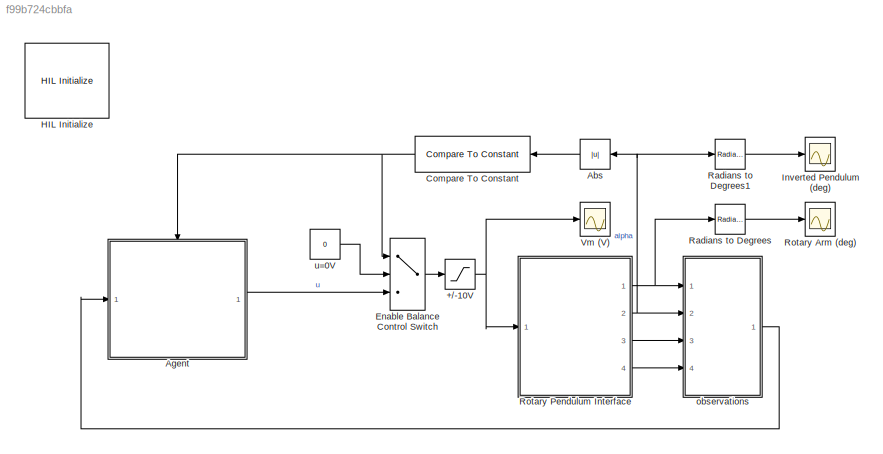
MODEL slx_f99b724cbbfa
KIND model
CONFIG AbsTol = auto
CONFIG EnableMultiTasking = on
CONFIG FixedStep = 0.002
CONFIG MaxStep = auto
CONFIG MinStep = auto
CONFIG RelTol = 1e-3
CONFIG SampleTimeConstraint = Unconstrained
CONFIG SolverName = ode4
CONFIG StartTime = 0.0
CONFIG StopTime = inf
BLOCK [Saturate] +//-10V
  LowerLimit = -10
  UpperLimit = 10
BLOCK [Abs] Abs
  SaturateOnIntegerOverflow = off
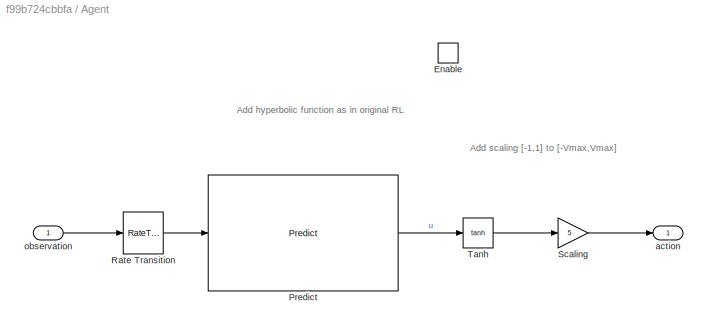
BLOCK [SubSystem] Agent
  Ports = [1, 1, 1]
  RequestExecContextInheritance = off
BLOCK [EnablePort] Agent/Enable
  Ports = []
BLOCK [Reference] Agent/Predict  REF=deeplib/Predict
  Ports = [1, 1]
  SourceBlock = deeplib/Predict
  SourceProductBaseCode = NN
  SourceType = Predict
BLOCK [RateTransition] Agent/Rate Transition
BLOCK [Gain] Agent/Scaling
  Gain = 5
BLOCK [Trigonometry] Agent/Tanh
  Operator = tanh
  Ports = [1, 1]
BLOCK [Outport] Agent/action
  InitialOutput = [0]
BLOCK [Inport] Agent/observation
BLOCK [Reference] Compare To Constant  REF=simulink/Logic and Bit
Operations/Compare
To Constant
  Ports = [1, 1]
  SourceBlock = simulink/Logic and Bit\nOperations/Compare\nTo Constant
  SourceProductBaseCode = SL
  SourceType = Compare To Constant
BLOCK [MultiPortSwitch] Enable Balance Control Switch
  DataPortOrder = Zero-based contiguous
  InputSameDT = off
  Inputs = 2
  Ports = [3, 1]
  SaturateOnIntegerOverflow = off
  zeroidx = on
BLOCK [Reference] HIL Initialize  REF=quarc_library/Data Acquisition/Generic/Configuration/HIL Initialize
  AttributesFormatString = %<object_name> (%<board_type>-%<board_number>)
  Ports = []
  SourceBlock = quarc_library/Data Acquisition/Generic/Configuration/HIL Initialize
  SourceProductName = QUARC Targets
  SourceType = HIL Initialize
  UserDataPersistent = on
BLOCK [Scope] Inverted Pendulum (deg)
  Floating = off
  NumInputPorts = 1
  Ports = [1]
  ScopeSpecificationString = Simulink.scopes.TimeScopeBlockCfg('CurrentConfiguration', extmgr.ConfigurationSet(extmgr.Configuration('Core','General UI',true),extmgr.Configuration('Core','Source UI',true),extmgr.Configuration('Sources','WiredSimulink',true,'DataLoggingVariableName','ScopeData1'),extmgr.Configuration('Visuals','Time Domain',true,'SerializedDisplays',{struct('MinYLimReal','-20','MaxYLimReal','20','YLabelReal',''...<+1456ch>
BLOCK [Reference] Radians to Degrees  REF=simulink_extras/Transformations/Radians
to Degrees
  Ports = [1, 1]
  SourceBlock = simulink_extras/Transformations/Radians\nto Degrees
  SourceProductBaseCode = SL
  SourceType = RadiansToDegrees
BLOCK [Reference] Radians to Degrees1  REF=simulink_extras/Transformations/Radians
to Degrees
  Ports = [1, 1]
  SourceBlock = simulink_extras/Transformations/Radians\nto Degrees
  SourceProductBaseCode = SL
  SourceType = RadiansToDegrees
BLOCK [Scope] Rotary Arm (deg)
  Floating = off
  NumInputPorts = 1
  Ports = [1]
  ScopeSpecificationString = Simulink.scopes.TimeScopeBlockCfg('CurrentConfiguration', extmgr.ConfigurationSet(extmgr.Configuration('Core','General UI',true),extmgr.Configuration('Core','Source UI',true),extmgr.Configuration('Sources','WiredSimulink',true,'DataLoggingVariableName','ScopeData2'),extmgr.Configuration('Visuals','Time Domain',true,'SerializedDisplays',{struct('MinYLimReal','-30','MaxYLimReal','30','YLabelReal',''...<+1431ch>
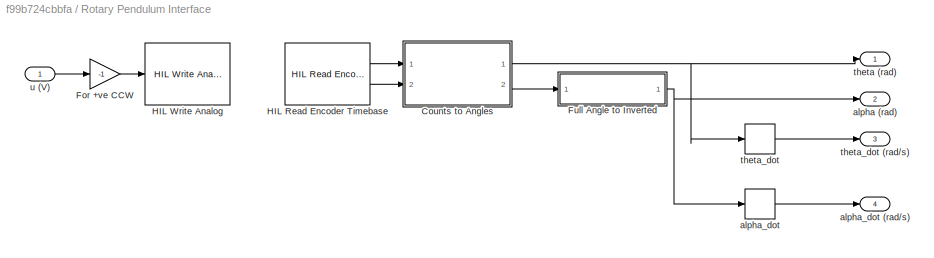
BLOCK [SubSystem] Rotary Pendulum Interface
  Ports = [1, 4]
  RequestExecContextInheritance = off
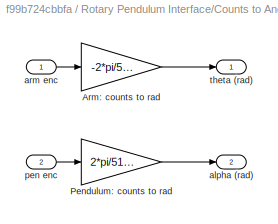
BLOCK [SubSystem] Rotary Pendulum Interface/Counts to Angles
  Ports = [2, 2]
  RequestExecContextInheritance = off
BLOCK [Gain] Rotary Pendulum Interface/Counts to Angles/Arm: counts to rad
  Gain = -2*pi/512/4
BLOCK [Gain] Rotary Pendulum Interface/Counts to Angles/Pendulum: counts to rad
  Gain = 2*pi/512/4
BLOCK [Outport] Rotary Pendulum Interface/Counts to Angles/alpha (rad)
  Port = 2
  VectorParamsAs1DForOutWhenUnconnected = off
BLOCK [Inport] Rotary Pendulum Interface/Counts to Angles/arm enc
BLOCK [Inport] Rotary Pendulum Interface/Counts to Angles/pen enc
  Port = 2
BLOCK [Outport] Rotary Pendulum Interface/Counts to Angles/theta (rad)
  VectorParamsAs1DForOutWhenUnconnected = off
BLOCK [Gain] Rotary Pendulum Interface/For +ve CCW
  Gain = -1
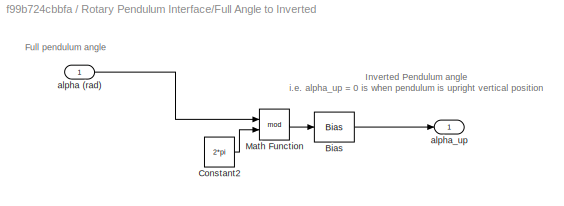
BLOCK [SubSystem] Rotary Pendulum Interface/Full Angle to Inverted
  Ports = [1, 1]
  RequestExecContextInheritance = off
BLOCK [Bias] Rotary Pendulum Interface/Full Angle to Inverted/Bias
  Bias = -pi
  SaturateOnIntegerOverflow = off
BLOCK [Constant] Rotary Pendulum Interface/Full Angle to Inverted/Constant2
  Value = 2*pi
BLOCK [Math] Rotary Pendulum Interface/Full Angle to Inverted/Math Function
  Operator = mod
  Ports = [2, 1]
  SignedPower = on
BLOCK [Inport] Rotary Pendulum Interface/Full Angle to Inverted/alpha (rad)
BLOCK [Outport] Rotary Pendulum Interface/Full Angle to Inverted/alpha_up
  VectorParamsAs1DForOutWhenUnconnected = off
BLOCK [Reference] Rotary Pendulum Interface/HIL Read Encoder Timebase  REF=quarc_library/Data Acquisition/Generic/Timebases/HIL Read Encoder
Timebase
  AttributesFormatString = (%<object_name>)
  Ports = [0, 2]
  SourceBlock = quarc_library/Data Acquisition/Generic/Timebases/HIL Read Encoder\nTimebase
  SourceProductName = QUARC Targets
  SourceType = HIL Read Encoder Timebase
  UserDataPersistent = on
BLOCK [Reference] Rotary Pendulum Interface/HIL Write Analog  REF=quarc_library/Data Acquisition/Generic/Immediate I//O/HIL Write Analog
  AttributesFormatString = (%<object_name>)
  Ports = [1]
  SourceBlock = quarc_library/Data Acquisition/Generic/Immediate I//O/HIL Write Analog
  SourceProductName = QUARC Targets
  SourceType = HIL Write Analog
  UserDataPersistent = on
BLOCK [Outport] Rotary Pendulum Interface/alpha (rad)
  Port = 2
  VectorParamsAs1DForOutWhenUnconnected = off
BLOCK [Derivative] Rotary Pendulum Interface/alpha_dot
BLOCK [Outport] Rotary Pendulum Interface/alpha_dot (rad//s)
  Port = 4
  VectorParamsAs1DForOutWhenUnconnected = off
BLOCK [Outport] Rotary Pendulum Interface/theta (rad)
  VectorParamsAs1DForOutWhenUnconnected = off
BLOCK [Derivative] Rotary Pendulum Interface/theta_dot
BLOCK [Outport] Rotary Pendulum Interface/theta_dot (rad//s)
  Port = 3
  VectorParamsAs1DForOutWhenUnconnected = off
BLOCK [Inport] Rotary Pendulum Interface/u (V)
BLOCK [Scope] Vm (V)
  Floating = off
  NumInputPorts = 1
  Ports = [1]
  ScopeSpecificationString = Simulink.scopes.TimeScopeBlockCfg('CurrentConfiguration', extmgr.ConfigurationSet(extmgr.Configuration('Core','General UI',true),extmgr.Configuration('Core','Source UI',true),extmgr.Configuration('Sources','WiredSimulink',true),extmgr.Configuration('Visuals','Time Domain',true,'SerializedDisplays',{struct('MinYLimReal','-8','MaxYLimReal','8','YLabelReal','','MinYLimMag','0.00000','MaxYLimMag','3.2...<+1401ch>
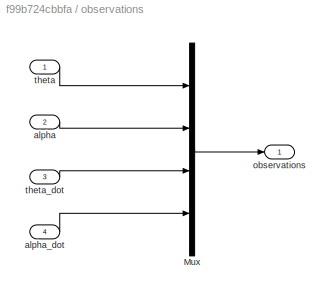
BLOCK [SubSystem] observations
  Ports = [4, 1]
  RequestExecContextInheritance = off
  VariantControl = sincos
BLOCK [Mux] observations/Mux
  DisplayOption = bar
  Ports = [4, 1]
BLOCK [Inport] observations/alpha
  Port = 2
BLOCK [Inport] observations/alpha_dot
  Port = 4
BLOCK [Outport] observations/observations
  VectorParamsAs1DForOutWhenUnconnected = off
BLOCK [Inport] observations/theta
BLOCK [Inport] observations/theta_dot
  Port = 3
BLOCK [Constant] u=0V
  Value = 0
ANNOTATION Agent: Add hyperbolic function as in original RL
ANNOTATION Agent: Add scaling [-1,1] to [-Vmax,Vmax]
ANNOTATION Rotary Pendulum Interface/Full Angle to Inverted: Full pendulum angle
ANNOTATION Rotary Pendulum Interface/Full Angle to Inverted: Inverted Pendulum angle i.e. alpha_up = 0 is when pendulum is upright vertical position
NET +//-10V:1 -> Rotary Pendulum Interface:1, Vm (V):1
LINE Abs:1 -> Compare To Constant:1
LINE Agent/Predict:1 -> Agent/Tanh:1
LINE Agent/Rate Transition:1 -> Agent/Predict:1
LINE Agent/Scaling:1 -> Agent/action:1
LINE Agent/Tanh:1 -> Agent/Scaling:1
LINE Agent/observation:1 -> Agent/Rate Transition:1
LINE Agent:1 -> Enable Balance Control Switch:3
NET Compare To Constant:1 -> Agent:enable, Enable Balance Control Switch:1
LINE Enable Balance Control Switch:1 -> +//-10V:1
LINE Radians to Degrees1:1 -> Inverted Pendulum (deg):1
LINE Radians to Degrees:1 -> Rotary Arm (deg):1
LINE Rotary Pendulum Interface/Counts to Angles/Arm: counts to rad:1 -> Rotary Pendulum Interface/Counts to Angles/theta (rad):1
LINE Rotary Pendulum Interface/Counts to Angles/Pendulum: counts to rad:1 -> Rotary Pendulum Interface/Counts to Angles/alpha (rad):1
LINE Rotary Pendulum Interface/Counts to Angles/arm enc:1 -> Rotary Pendulum Interface/Counts to Angles/Arm: counts to rad:1
LINE Rotary Pendulum Interface/Counts to Angles/pen enc:1 -> Rotary Pendulum Interface/Counts to Angles/Pendulum: counts to rad:1
NET Rotary Pendulum Interface/Counts to Angles:1 -> Rotary Pendulum Interface/theta (rad):1, Rotary Pendulum Interface/theta_dot:1
LINE Rotary Pendulum Interface/Counts to Angles:2 -> Rotary Pendulum Interface/Full Angle to Inverted:1
LINE Rotary Pendulum Interface/For +ve CCW:1 -> Rotary Pendulum Interface/HIL Write Analog:1
LINE Rotary Pendulum Interface/Full Angle to Inverted/Bias:1 -> Rotary Pendulum Interface/Full Angle to Inverted/alpha_up:1
LINE Rotary Pendulum Interface/Full Angle to Inverted/Constant2:1 -> Rotary Pendulum Interface/Full Angle to Inverted/Math Function:2
LINE Rotary Pendulum Interface/Full Angle to Inverted/Math Function:1 -> Rotary Pendulum Interface/Full Angle to Inverted/Bias:1
LINE Rotary Pendulum Interface/Full Angle to Inverted/alpha (rad):1 -> Rotary Pendulum Interface/Full Angle to Inverted/Math Function:1
NET Rotary Pendulum Interface/Full Angle to Inverted:1 -> Rotary Pendulum Interface/alpha (rad):1, Rotary Pendulum Interface/alpha_dot:1
LINE Rotary Pendulum Interface/HIL Read Encoder Timebase:1 -> Rotary Pendulum Interface/Counts to Angles:1
LINE Rotary Pendulum Interface/HIL Read Encoder Timebase:2 -> Rotary Pendulum Interface/Counts to Angles:2
LINE Rotary Pendulum Interface/alpha_dot:1 -> Rotary Pendulum Interface/alpha_dot (rad//s):1
LINE Rotary Pendulum Interface/theta_dot:1 -> Rotary Pendulum Interface/theta_dot (rad//s):1
LINE Rotary Pendulum Interface/u (V):1 -> Rotary Pendulum Interface/For +ve CCW:1
NET Rotary Pendulum Interface:1 -> Radians to Degrees:1, observations:1
NET Rotary Pendulum Interface:2 -> Abs:1, Radians to Degrees1:1, observations:2
LINE Rotary Pendulum Interface:3 -> observations:3
LINE Rotary Pendulum Interface:4 -> observations:4
LINE observations/Mux:1 -> observations/observations:1
LINE observations/alpha:1 -> observations/Mux:2
LINE observations/alpha_dot:1 -> observations/Mux:4
LINE observations/theta:1 -> observations/Mux:1
LINE observations/theta_dot:1 -> observations/Mux:3
LINE observations:1 -> Agent:1
LINE u=0V:1 -> Enable Balance Control Switch:2
note: NET lines group one-source signal fan-out (src -> all destinations, sorted); 1:1 wires keep LINE
